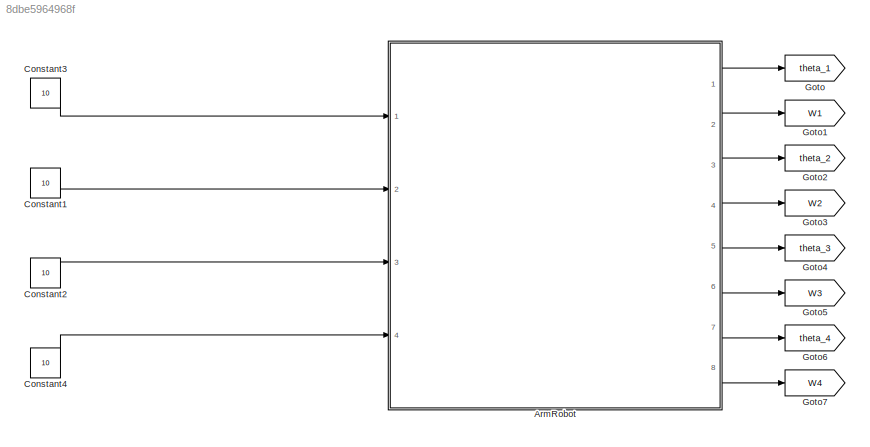
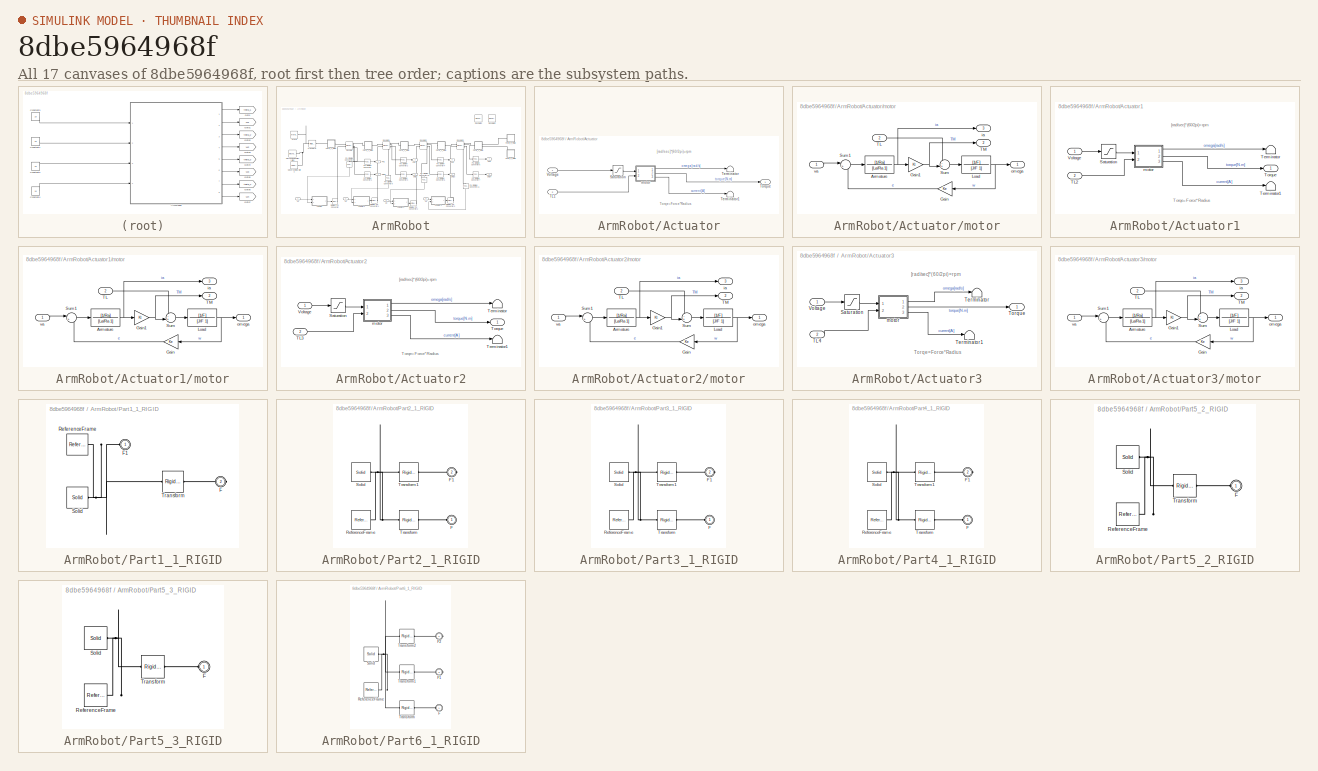
[diagram: thumbnail index - all 17 canvases of the model, root first then tree order]
MODEL slx_8dbe5964968f
KIND model
CONFIG AbsTol = auto
CONFIG FixedStep = 0.001
CONFIG MaxStep = auto
CONFIG MinStep = auto
CONFIG RelTol = 1e-3
CONFIG SampleTimeConstraint = Unconstrained
CONFIG Solver = ode5
CONFIG SolverMode = Auto
CONFIG SolverName = ode5
CONFIG StartTime = 0.0
CONFIG StopTime = 10
WORKSPACE source: external: MATLAB File  (data not in archive)
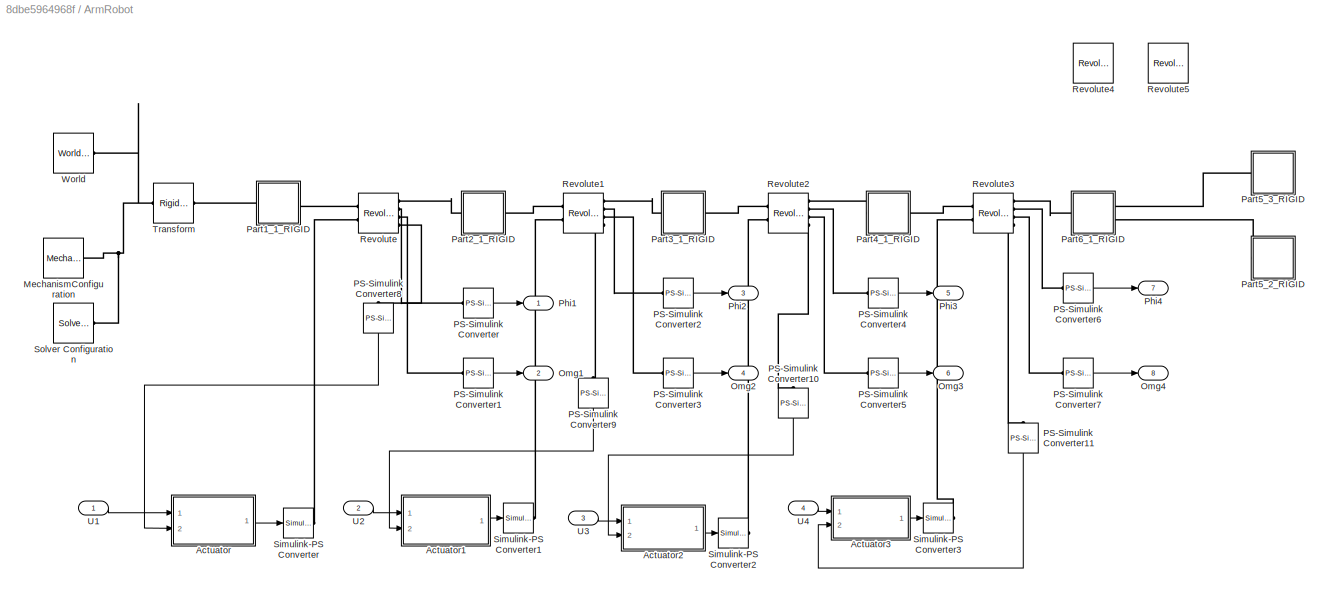
BLOCK [SubSystem] ArmRobot
  Ports = [4, 8]
  RequestExecContextInheritance = off
  Variant = off
BLOCK [SubSystem] ArmRobot/Actuator
  Ports = [2, 1]
  RequestExecContextInheritance = off
  Variant = off
BLOCK [Saturate] ArmRobot/Actuator/Saturation
  InputPortMap = u0
  LowerLimit = -12
  Ports = [1, 1]
  UpperLimit = 12
BLOCK [Inport] ArmRobot/Actuator/TL1 
  IconDisplay = Port number
  Port = 2
BLOCK [Terminator] ArmRobot/Actuator/Terminator
BLOCK [Terminator] ArmRobot/Actuator/Terminator1
BLOCK [Outport] ArmRobot/Actuator/Torque
  IconDisplay = Port number
BLOCK [Inport] ArmRobot/Actuator/Voltage
  IconDisplay = Port number
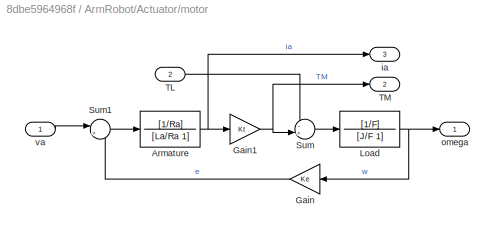
BLOCK [SubSystem] ArmRobot/Actuator/motor
  Ports = [2, 3]
  RequestExecContextInheritance = off
  Variant = off
BLOCK [TransferFcn] ArmRobot/Actuator/motor/Armature
  Denominator = [La/Ra 1]
  Numerator = [1/Ra]
BLOCK [Gain] ArmRobot/Actuator/motor/Gain
  Gain = Ke
  OutDataTypeStr = Inherit: Inherit via internal rule
  ParamDataTypeStr = Inherit: Inherit via internal rule
  SaturateOnIntegerOverflow = off
BLOCK [Gain] ArmRobot/Actuator/motor/Gain1
  Gain = Kt
  OutDataTypeStr = Inherit: Inherit via internal rule
  ParamDataTypeStr = Inherit: Inherit via internal rule
  SaturateOnIntegerOverflow = off
BLOCK [TransferFcn] ArmRobot/Actuator/motor/Load
  Denominator = [J/F 1]
  Numerator = [1/F]
BLOCK [Sum] ArmRobot/Actuator/motor/Sum
  IconShape = round
  InputSameDT = off
  Inputs = -+|
  OutDataTypeStr = Inherit: Inherit via internal rule
  Ports = [2, 1]
  SaturateOnIntegerOverflow = off
BLOCK [Sum] ArmRobot/Actuator/motor/Sum1
  IconShape = round
  InputSameDT = off
  Inputs = |+-
  OutDataTypeStr = Inherit: Inherit via internal rule
  Ports = [2, 1]
  SaturateOnIntegerOverflow = off
BLOCK [Inport] ArmRobot/Actuator/motor/TL
  IconDisplay = Port number
  Port = 2
BLOCK [Outport] ArmRobot/Actuator/motor/TM
  IconDisplay = Port number
  Port = 2
BLOCK [Outport] ArmRobot/Actuator/motor/ia
  IconDisplay = Port number
  Port = 3
BLOCK [Outport] ArmRobot/Actuator/motor/omega
  IconDisplay = Port number
BLOCK [Inport] ArmRobot/Actuator/motor/va
  IconDisplay = Port number
BLOCK [SubSystem] ArmRobot/Actuator1
  Ports = [2, 1]
  RequestExecContextInheritance = off
  Variant = off
BLOCK [Saturate] ArmRobot/Actuator1/Saturation
  InputPortMap = u0
  LowerLimit = -12
  Ports = [1, 1]
  UpperLimit = 12
BLOCK [Inport] ArmRobot/Actuator1/TL2
  IconDisplay = Port number
  Port = 2
BLOCK [Terminator] ArmRobot/Actuator1/Terminator
BLOCK [Terminator] ArmRobot/Actuator1/Terminator1
BLOCK [Outport] ArmRobot/Actuator1/Torque
  IconDisplay = Port number
BLOCK [Inport] ArmRobot/Actuator1/Voltage
  IconDisplay = Port number
BLOCK [SubSystem] ArmRobot/Actuator1/motor
  Ports = [2, 3]
  RequestExecContextInheritance = off
  Variant = off
BLOCK [TransferFcn] ArmRobot/Actuator1/motor/Armature
  Denominator = [La/Ra 1]
  Numerator = [1/Ra]
BLOCK [Gain] ArmRobot/Actuator1/motor/Gain
  Gain = Ke
  OutDataTypeStr = Inherit: Inherit via internal rule
  ParamDataTypeStr = Inherit: Inherit via internal rule
  SaturateOnIntegerOverflow = off
BLOCK [Gain] ArmRobot/Actuator1/motor/Gain1
  Gain = Kt
  OutDataTypeStr = Inherit: Inherit via internal rule
  ParamDataTypeStr = Inherit: Inherit via internal rule
  SaturateOnIntegerOverflow = off
BLOCK [TransferFcn] ArmRobot/Actuator1/motor/Load
  Denominator = [J/F 1]
  Numerator = [1/F]
BLOCK [Sum] ArmRobot/Actuator1/motor/Sum
  IconShape = round
  InputSameDT = off
  Inputs = -+|
  OutDataTypeStr = Inherit: Inherit via internal rule
  Ports = [2, 1]
  SaturateOnIntegerOverflow = off
BLOCK [Sum] ArmRobot/Actuator1/motor/Sum1
  IconShape = round
  InputSameDT = off
  Inputs = |+-
  OutDataTypeStr = Inherit: Inherit via internal rule
  Ports = [2, 1]
  SaturateOnIntegerOverflow = off
BLOCK [Inport] ArmRobot/Actuator1/motor/TL
  IconDisplay = Port number
  Port = 2
BLOCK [Outport] ArmRobot/Actuator1/motor/TM
  IconDisplay = Port number
  Port = 2
BLOCK [Outport] ArmRobot/Actuator1/motor/ia
  IconDisplay = Port number
  Port = 3
BLOCK [Outport] ArmRobot/Actuator1/motor/omega
  IconDisplay = Port number
BLOCK [Inport] ArmRobot/Actuator1/motor/va
  IconDisplay = Port number
BLOCK [SubSystem] ArmRobot/Actuator2
  Ports = [2, 1]
  RequestExecContextInheritance = off
  Variant = off
BLOCK [Saturate] ArmRobot/Actuator2/Saturation
  InputPortMap = u0
  LowerLimit = -12
  Ports = [1, 1]
  UpperLimit = 12
BLOCK [Inport] ArmRobot/Actuator2/TL3
  IconDisplay = Port number
  Port = 2
BLOCK [Terminator] ArmRobot/Actuator2/Terminator
BLOCK [Terminator] ArmRobot/Actuator2/Terminator1
BLOCK [Outport] ArmRobot/Actuator2/Torque
  IconDisplay = Port number
BLOCK [Inport] ArmRobot/Actuator2/Voltage
  IconDisplay = Port number
BLOCK [SubSystem] ArmRobot/Actuator2/motor
  Ports = [2, 3]
  RequestExecContextInheritance = off
  Variant = off
BLOCK [TransferFcn] ArmRobot/Actuator2/motor/Armature
  Denominator = [La/Ra 1]
  Numerator = [1/Ra]
BLOCK [Gain] ArmRobot/Actuator2/motor/Gain
  Gain = Ke
  OutDataTypeStr = Inherit: Inherit via internal rule
  ParamDataTypeStr = Inherit: Inherit via internal rule
  SaturateOnIntegerOverflow = off
BLOCK [Gain] ArmRobot/Actuator2/motor/Gain1
  Gain = Kt
  OutDataTypeStr = Inherit: Inherit via internal rule
  ParamDataTypeStr = Inherit: Inherit via internal rule
  SaturateOnIntegerOverflow = off
BLOCK [TransferFcn] ArmRobot/Actuator2/motor/Load
  Denominator = [J/F 1]
  Numerator = [1/F]
BLOCK [Sum] ArmRobot/Actuator2/motor/Sum
  IconShape = round
  InputSameDT = off
  Inputs = -+|
  OutDataTypeStr = Inherit: Inherit via internal rule
  Ports = [2, 1]
  SaturateOnIntegerOverflow = off
BLOCK [Sum] ArmRobot/Actuator2/motor/Sum1
  IconShape = round
  InputSameDT = off
  Inputs = |+-
  OutDataTypeStr = Inherit: Inherit via internal rule
  Ports = [2, 1]
  SaturateOnIntegerOverflow = off
BLOCK [Inport] ArmRobot/Actuator2/motor/TL
  IconDisplay = Port number
  Port = 2
BLOCK [Outport] ArmRobot/Actuator2/motor/TM
  IconDisplay = Port number
  Port = 2
BLOCK [Outport] ArmRobot/Actuator2/motor/ia
  IconDisplay = Port number
  Port = 3
BLOCK [Outport] ArmRobot/Actuator2/motor/omega
  IconDisplay = Port number
BLOCK [Inport] ArmRobot/Actuator2/motor/va
  IconDisplay = Port number
BLOCK [SubSystem] ArmRobot/Actuator3
  Ports = [2, 1]
  RequestExecContextInheritance = off
  Variant = off
BLOCK [Saturate] ArmRobot/Actuator3/Saturation
  InputPortMap = u0
  LowerLimit = -12
  Ports = [1, 1]
  UpperLimit = 12
BLOCK [Inport] ArmRobot/Actuator3/TL4
  IconDisplay = Port number
  Port = 2
BLOCK [Terminator] ArmRobot/Actuator3/Terminator
BLOCK [Terminator] ArmRobot/Actuator3/Terminator1
BLOCK [Outport] ArmRobot/Actuator3/Torque
  IconDisplay = Port number
BLOCK [Inport] ArmRobot/Actuator3/Voltage
  IconDisplay = Port number
BLOCK [SubSystem] ArmRobot/Actuator3/motor
  Ports = [2, 3]
  RequestExecContextInheritance = off
  Variant = off
BLOCK [TransferFcn] ArmRobot/Actuator3/motor/Armature
  Denominator = [La/Ra 1]
  Numerator = [1/Ra]
BLOCK [Gain] ArmRobot/Actuator3/motor/Gain
  Gain = Ke
  OutDataTypeStr = Inherit: Inherit via internal rule
  ParamDataTypeStr = Inherit: Inherit via internal rule
  SaturateOnIntegerOverflow = off
BLOCK [Gain] ArmRobot/Actuator3/motor/Gain1
  Gain = Kt
  OutDataTypeStr = Inherit: Inherit via internal rule
  ParamDataTypeStr = Inherit: Inherit via internal rule
  SaturateOnIntegerOverflow = off
BLOCK [TransferFcn] ArmRobot/Actuator3/motor/Load
  Denominator = [J/F 1]
  Numerator = [1/F]
BLOCK [Sum] ArmRobot/Actuator3/motor/Sum
  IconShape = round
  InputSameDT = off
  Inputs = -+|
  OutDataTypeStr = Inherit: Inherit via internal rule
  Ports = [2, 1]
  SaturateOnIntegerOverflow = off
BLOCK [Sum] ArmRobot/Actuator3/motor/Sum1
  IconShape = round
  InputSameDT = off
  Inputs = |+-
  OutDataTypeStr = Inherit: Inherit via internal rule
  Ports = [2, 1]
  SaturateOnIntegerOverflow = off
BLOCK [Inport] ArmRobot/Actuator3/motor/TL
  IconDisplay = Port number
  Port = 2
BLOCK [Outport] ArmRobot/Actuator3/motor/TM
  IconDisplay = Port number
  Port = 2
BLOCK [Outport] ArmRobot/Actuator3/motor/ia
  IconDisplay = Port number
  Port = 3
BLOCK [Outport] ArmRobot/Actuator3/motor/omega
  IconDisplay = Port number
BLOCK [Inport] ArmRobot/Actuator3/motor/va
  IconDisplay = Port number
BLOCK [Reference] ArmRobot/MechanismConfiguration  REF=sm_lib/Utilities/Mechanism
Configuration
  Ports = [0, 0, 0, 0, 0, 0, 1]
  SourceBlock = sm_lib/Utilities/Mechanism\nConfiguration
  SourceType = Mechanism\nConfiguration
BLOCK [Outport] ArmRobot/Omg1
  IconDisplay = Port number
  Port = 2
BLOCK [Outport] ArmRobot/Omg2
  IconDisplay = Port number
  Port = 4
BLOCK [Outport] ArmRobot/Omg3
  IconDisplay = Port number
  Port = 6
BLOCK [Outport] ArmRobot/Omg4
  IconDisplay = Port number
  Port = 8
BLOCK [Reference] ArmRobot/PS-Simulink Converter  REF=nesl_utility/PS-Simulink
Converter
  Ports = [0, 1, 0, 0, 0, 1]
  SourceBlock = nesl_utility/PS-Simulink\nConverter
  SourceType = PS-Simulink\nConverter
BLOCK [Reference] ArmRobot/PS-Simulink Converter1  REF=nesl_utility/PS-Simulink
Converter
  Ports = [0, 1, 0, 0, 0, 1]
  SourceBlock = nesl_utility/PS-Simulink\nConverter
  SourceType = PS-Simulink\nConverter
BLOCK [Reference] ArmRobot/PS-Simulink Converter10  REF=nesl_utility/PS-Simulink
Converter
  Ports = [0, 1, 0, 0, 0, 1]
  SourceBlock = nesl_utility/PS-Simulink\nConverter
  SourceType = PS-Simulink\nConverter
BLOCK [Reference] ArmRobot/PS-Simulink Converter11  REF=nesl_utility/PS-Simulink
Converter
  Ports = [0, 1, 0, 0, 0, 1]
  SourceBlock = nesl_utility/PS-Simulink\nConverter
  SourceType = PS-Simulink\nConverter
BLOCK [Reference] ArmRobot/PS-Simulink Converter2  REF=nesl_utility/PS-Simulink
Converter
  Ports = [0, 1, 0, 0, 0, 1]
  SourceBlock = nesl_utility/PS-Simulink\nConverter
  SourceType = PS-Simulink\nConverter
BLOCK [Reference] ArmRobot/PS-Simulink Converter3  REF=nesl_utility/PS-Simulink
Converter
  Ports = [0, 1, 0, 0, 0, 1]
  SourceBlock = nesl_utility/PS-Simulink\nConverter
  SourceType = PS-Simulink\nConverter
BLOCK [Reference] ArmRobot/PS-Simulink Converter4  REF=nesl_utility/PS-Simulink
Converter
  Ports = [0, 1, 0, 0, 0, 1]
  SourceBlock = nesl_utility/PS-Simulink\nConverter
  SourceType = PS-Simulink\nConverter
BLOCK [Reference] ArmRobot/PS-Simulink Converter5  REF=nesl_utility/PS-Simulink
Converter
  Ports = [0, 1, 0, 0, 0, 1]
  SourceBlock = nesl_utility/PS-Simulink\nConverter
  SourceType = PS-Simulink\nConverter
BLOCK [Reference] ArmRobot/PS-Simulink Converter6  REF=nesl_utility/PS-Simulink
Converter
  Ports = [0, 1, 0, 0, 0, 1]
  SourceBlock = nesl_utility/PS-Simulink\nConverter
  SourceType = PS-Simulink\nConverter
BLOCK [Reference] ArmRobot/PS-Simulink Converter7  REF=nesl_utility/PS-Simulink
Converter
  Ports = [0, 1, 0, 0, 0, 1]
  SourceBlock = nesl_utility/PS-Simulink\nConverter
  SourceType = PS-Simulink\nConverter
BLOCK [Reference] ArmRobot/PS-Simulink Converter8  REF=nesl_utility/PS-Simulink
Converter
  Ports = [0, 1, 0, 0, 0, 1]
  SourceBlock = nesl_utility/PS-Simulink\nConverter
  SourceType = PS-Simulink\nConverter
BLOCK [Reference] ArmRobot/PS-Simulink Converter9  REF=nesl_utility/PS-Simulink
Converter
  Ports = [0, 1, 0, 0, 0, 1]
  SourceBlock = nesl_utility/PS-Simulink\nConverter
  SourceType = PS-Simulink\nConverter
BLOCK [SubSystem] ArmRobot/Part1_1_RIGID
  Ports = [0, 0, 0, 0, 0, 1, 1]
  RequestExecContextInheritance = off
  Variant = off
BLOCK [PMIOPort] ArmRobot/Part1_1_RIGID/F
  Port = 2
  Side = Right
BLOCK [PMIOPort] ArmRobot/Part1_1_RIGID/F1
  Port = 1
  Side = Left
BLOCK [Reference] ArmRobot/Part1_1_RIGID/ReferenceFrame  REF=sm_lib/Frames and
Transforms/Reference
Frame
  Ports = [0, 0, 0, 0, 0, 0, 1]
  SourceBlock = sm_lib/Frames and\nTransforms/Reference\nFrame
  SourceType = Reference\nFrame
BLOCK [Reference] ArmRobot/Part1_1_RIGID/Solid  REF=sm_lib/Body Elements/Solid
  Ports = [0, 0, 0, 0, 0, 0, 1]
  SourceBlock = sm_lib/Body Elements/Solid
  SourceType = Solid
BLOCK [Reference] ArmRobot/Part1_1_RIGID/Transform  REF=sm_lib/Frames and
Transforms/Rigid
Transform
  Ports = [0, 0, 0, 0, 0, 1, 1]
  SourceBlock = sm_lib/Frames and\nTransforms/Rigid\nTransform
  SourceType = Rigid\nTransform
BLOCK [SubSystem] ArmRobot/Part2_1_RIGID
  Ports = [0, 0, 0, 0, 0, 1, 1]
  RequestExecContextInheritance = off
  Variant = off
BLOCK [PMIOPort] ArmRobot/Part2_1_RIGID/F
  Port = 1
  Side = Left
BLOCK [PMIOPort] ArmRobot/Part2_1_RIGID/F1
  Port = 2
  Side = Right
BLOCK [Reference] ArmRobot/Part2_1_RIGID/ReferenceFrame  REF=sm_lib/Frames and
Transforms/Reference
Frame
  Ports = [0, 0, 0, 0, 0, 0, 1]
  SourceBlock = sm_lib/Frames and\nTransforms/Reference\nFrame
  SourceType = Reference\nFrame
BLOCK [Reference] ArmRobot/Part2_1_RIGID/Solid  REF=sm_lib/Body Elements/Solid
  Ports = [0, 0, 0, 0, 0, 0, 1]
  SourceBlock = sm_lib/Body Elements/Solid
  SourceType = Solid
BLOCK [Reference] ArmRobot/Part2_1_RIGID/Transform  REF=sm_lib/Frames and
Transforms/Rigid
Transform
  Ports = [0, 0, 0, 0, 0, 1, 1]
  SourceBlock = sm_lib/Frames and\nTransforms/Rigid\nTransform
  SourceType = Rigid\nTransform
BLOCK [Reference] ArmRobot/Part2_1_RIGID/Transform1  REF=sm_lib/Frames and
Transforms/Rigid
Transform
  Ports = [0, 0, 0, 0, 0, 1, 1]
  SourceBlock = sm_lib/Frames and\nTransforms/Rigid\nTransform
  SourceType = Rigid\nTransform
BLOCK [SubSystem] ArmRobot/Part3_1_RIGID
  Ports = [0, 0, 0, 0, 0, 1, 1]
  RequestExecContextInheritance = off
  Variant = off
BLOCK [PMIOPort] ArmRobot/Part3_1_RIGID/F
  Port = 1
  Side = Left
BLOCK [PMIOPort] ArmRobot/Part3_1_RIGID/F1
  Port = 2
  Side = Right
BLOCK [Reference] ArmRobot/Part3_1_RIGID/ReferenceFrame  REF=sm_lib/Frames and
Transforms/Reference
Frame
  Ports = [0, 0, 0, 0, 0, 0, 1]
  SourceBlock = sm_lib/Frames and\nTransforms/Reference\nFrame
  SourceType = Reference\nFrame
BLOCK [Reference] ArmRobot/Part3_1_RIGID/Solid  REF=sm_lib/Body Elements/Solid
  Ports = [0, 0, 0, 0, 0, 0, 1]
  SourceBlock = sm_lib/Body Elements/Solid
  SourceType = Solid
BLOCK [Reference] ArmRobot/Part3_1_RIGID/Transform  REF=sm_lib/Frames and
Transforms/Rigid
Transform
  Ports = [0, 0, 0, 0, 0, 1, 1]
  SourceBlock = sm_lib/Frames and\nTransforms/Rigid\nTransform
  SourceType = Rigid\nTransform
BLOCK [Reference] ArmRobot/Part3_1_RIGID/Transform1  REF=sm_lib/Frames and
Transforms/Rigid
Transform
  Ports = [0, 0, 0, 0, 0, 1, 1]
  SourceBlock = sm_lib/Frames and\nTransforms/Rigid\nTransform
  SourceType = Rigid\nTransform
BLOCK [SubSystem] ArmRobot/Part4_1_RIGID
  Ports = [0, 0, 0, 0, 0, 1, 1]
  RequestExecContextInheritance = off
  Variant = off
BLOCK [PMIOPort] ArmRobot/Part4_1_RIGID/F
  Port = 1
  Side = Left
BLOCK [PMIOPort] ArmRobot/Part4_1_RIGID/F1
  Port = 2
  Side = Right
BLOCK [Reference] ArmRobot/Part4_1_RIGID/ReferenceFrame  REF=sm_lib/Frames and
Transforms/Reference
Frame
  Ports = [0, 0, 0, 0, 0, 0, 1]
  SourceBlock = sm_lib/Frames and\nTransforms/Reference\nFrame
  SourceType = Reference\nFrame
BLOCK [Reference] ArmRobot/Part4_1_RIGID/Solid  REF=sm_lib/Body Elements/Solid
  Ports = [0, 0, 0, 0, 0, 0, 1]
  SourceBlock = sm_lib/Body Elements/Solid
  SourceType = Solid
BLOCK [Reference] ArmRobot/Part4_1_RIGID/Transform  REF=sm_lib/Frames and
Transforms/Rigid
Transform
  Ports = [0, 0, 0, 0, 0, 1, 1]
  SourceBlock = sm_lib/Frames and\nTransforms/Rigid\nTransform
  SourceType = Rigid\nTransform
BLOCK [Reference] ArmRobot/Part4_1_RIGID/Transform1  REF=sm_lib/Frames and
Transforms/Rigid
Transform
  Ports = [0, 0, 0, 0, 0, 1, 1]
  SourceBlock = sm_lib/Frames and\nTransforms/Rigid\nTransform
  SourceType = Rigid\nTransform
BLOCK [SubSystem] ArmRobot/Part5_2_RIGID
  Ports = [0, 0, 0, 0, 0, 1]
  RequestExecContextInheritance = off
  Variant = off
BLOCK [PMIOPort] ArmRobot/Part5_2_RIGID/F
  Port = 1
  Side = Left
BLOCK [Reference] ArmRobot/Part5_2_RIGID/ReferenceFrame  REF=sm_lib/Frames and
Transforms/Reference
Frame
  Ports = [0, 0, 0, 0, 0, 0, 1]
  SourceBlock = sm_lib/Frames and\nTransforms/Reference\nFrame
  SourceType = Reference\nFrame
BLOCK [Reference] ArmRobot/Part5_2_RIGID/Solid  REF=sm_lib/Body Elements/Solid
  Ports = [0, 0, 0, 0, 0, 0, 1]
  SourceBlock = sm_lib/Body Elements/Solid
  SourceType = Solid
BLOCK [Reference] ArmRobot/Part5_2_RIGID/Transform  REF=sm_lib/Frames and
Transforms/Rigid
Transform
  Ports = [0, 0, 0, 0, 0, 1, 1]
  SourceBlock = sm_lib/Frames and\nTransforms/Rigid\nTransform
  SourceType = Rigid\nTransform
BLOCK [SubSystem] ArmRobot/Part5_3_RIGID
  Ports = [0, 0, 0, 0, 0, 1]
  RequestExecContextInheritance = off
  Variant = off
BLOCK [PMIOPort] ArmRobot/Part5_3_RIGID/F
  Port = 1
  Side = Left
BLOCK [Reference] ArmRobot/Part5_3_RIGID/ReferenceFrame  REF=sm_lib/Frames and
Transforms/Reference
Frame
  Ports = [0, 0, 0, 0, 0, 0, 1]
  SourceBlock = sm_lib/Frames and\nTransforms/Reference\nFrame
  SourceType = Reference\nFrame
BLOCK [Reference] ArmRobot/Part5_3_RIGID/Solid  REF=sm_lib/Body Elements/Solid
  Ports = [0, 0, 0, 0, 0, 0, 1]
  SourceBlock = sm_lib/Body Elements/Solid
  SourceType = Solid
BLOCK [Reference] ArmRobot/Part5_3_RIGID/Transform  REF=sm_lib/Frames and
Transforms/Rigid
Transform
  Ports = [0, 0, 0, 0, 0, 1, 1]
  SourceBlock = sm_lib/Frames and\nTransforms/Rigid\nTransform
  SourceType = Rigid\nTransform
BLOCK [SubSystem] ArmRobot/Part6_1_RIGID
  Ports = [0, 0, 0, 0, 0, 1, 2]
  RequestExecContextInheritance = off
  Variant = off
BLOCK [PMIOPort] ArmRobot/Part6_1_RIGID/F
  Port = 1
  Side = Left
BLOCK [PMIOPort] ArmRobot/Part6_1_RIGID/F1
  Port = 3
  Side = Right
BLOCK [PMIOPort] ArmRobot/Part6_1_RIGID/F2
  Port = 2
  Side = Right
BLOCK [Reference] ArmRobot/Part6_1_RIGID/ReferenceFrame  REF=sm_lib/Frames and
Transforms/Reference
Frame
  Ports = [0, 0, 0, 0, 0, 0, 1]
  SourceBlock = sm_lib/Frames and\nTransforms/Reference\nFrame
  SourceType = Reference\nFrame
BLOCK [Reference] ArmRobot/Part6_1_RIGID/Solid  REF=sm_lib/Body Elements/Solid
  Ports = [0, 0, 0, 0, 0, 0, 1]
  SourceBlock = sm_lib/Body Elements/Solid
  SourceType = Solid
BLOCK [Reference] ArmRobot/Part6_1_RIGID/Transform  REF=sm_lib/Frames and
Transforms/Rigid
Transform
  Ports = [0, 0, 0, 0, 0, 1, 1]
  SourceBlock = sm_lib/Frames and\nTransforms/Rigid\nTransform
  SourceType = Rigid\nTransform
BLOCK [Reference] ArmRobot/Part6_1_RIGID/Transform1  REF=sm_lib/Frames and
Transforms/Rigid
Transform
  Ports = [0, 0, 0, 0, 0, 1, 1]
  SourceBlock = sm_lib/Frames and\nTransforms/Rigid\nTransform
  SourceType = Rigid\nTransform
BLOCK [Reference] ArmRobot/Part6_1_RIGID/Transform2  REF=sm_lib/Frames and
Transforms/Rigid
Transform
  Ports = [0, 0, 0, 0, 0, 1, 1]
  SourceBlock = sm_lib/Frames and\nTransforms/Rigid\nTransform
  SourceType = Rigid\nTransform
BLOCK [Outport] ArmRobot/Phi1
  IconDisplay = Port number
BLOCK [Outport] ArmRobot/Phi2
  IconDisplay = Port number
  Port = 3
BLOCK [Outport] ArmRobot/Phi3
  IconDisplay = Port number
  Port = 5
BLOCK [Outport] ArmRobot/Phi4
  IconDisplay = Port number
  Port = 7
BLOCK [Reference] ArmRobot/Revolute  REF=sm_lib/Joints/Revolute Joint
  Ports = [0, 0, 0, 0, 0, 2, 4]
  SourceBlock = sm_lib/Joints/Revolute Joint
  SourceType = Revolute Joint
BLOCK [Reference] ArmRobot/Revolute1  REF=sm_lib/Joints/Revolute Joint
  Ports = [0, 0, 0, 0, 0, 2, 4]
  SourceBlock = sm_lib/Joints/Revolute Joint
  SourceType = Revolute Joint
BLOCK [Reference] ArmRobot/Revolute2  REF=sm_lib/Joints/Revolute Joint
  Ports = [0, 0, 0, 0, 0, 2, 4]
  SourceBlock = sm_lib/Joints/Revolute Joint
  SourceType = Revolute Joint
BLOCK [Reference] ArmRobot/Revolute3  REF=sm_lib/Joints/Revolute Joint
  Ports = [0, 0, 0, 0, 0, 2, 4]
  SourceBlock = sm_lib/Joints/Revolute Joint
  SourceType = Revolute Joint
BLOCK [Reference] ArmRobot/Revolute4  REF=sm_lib/Joints/Revolute Joint
  Commented = on
  Ports = [0, 0, 0, 0, 0, 1, 1]
  SourceBlock = sm_lib/Joints/Revolute Joint
  SourceType = Revolute Joint
BLOCK [Reference] ArmRobot/Revolute5  REF=sm_lib/Joints/Revolute Joint
  Commented = on
  Ports = [0, 0, 0, 0, 0, 1, 1]
  SourceBlock = sm_lib/Joints/Revolute Joint
  SourceType = Revolute Joint
BLOCK [Reference] ArmRobot/Simulink-PS Converter  REF=nesl_utility/Simulink-PS
Converter
  Ports = [1, 0, 0, 0, 0, 0, 1]
  SourceBlock = nesl_utility/Simulink-PS\nConverter
  SourceType = Simulink-PS\nConverter
BLOCK [Reference] ArmRobot/Simulink-PS Converter1  REF=nesl_utility/Simulink-PS
Converter
  Ports = [1, 0, 0, 0, 0, 0, 1]
  SourceBlock = nesl_utility/Simulink-PS\nConverter
  SourceType = Simulink-PS\nConverter
BLOCK [Reference] ArmRobot/Simulink-PS Converter2  REF=nesl_utility/Simulink-PS
Converter
  Ports = [1, 0, 0, 0, 0, 0, 1]
  SourceBlock = nesl_utility/Simulink-PS\nConverter
  SourceType = Simulink-PS\nConverter
BLOCK [Reference] ArmRobot/Simulink-PS Converter3  REF=nesl_utility/Simulink-PS
Converter
  Ports = [1, 0, 0, 0, 0, 0, 1]
  SourceBlock = nesl_utility/Simulink-PS\nConverter
  SourceType = Simulink-PS\nConverter
BLOCK [Reference] ArmRobot/Solver Configuration  REF=nesl_utility/Solver
Configuration
  Ports = [0, 0, 0, 0, 0, 0, 1]
  SourceBlock = nesl_utility/Solver\nConfiguration
  SourceType = Solver\nConfiguration
BLOCK [Reference] ArmRobot/Transform  REF=sm_lib/Frames and
Transforms/Rigid
Transform
  Ports = [0, 0, 0, 0, 0, 1, 1]
  SourceBlock = sm_lib/Frames and\nTransforms/Rigid\nTransform
  SourceType = Rigid\nTransform
BLOCK [Inport] ArmRobot/U1
  IconDisplay = Port number
BLOCK [Inport] ArmRobot/U2
  IconDisplay = Port number
  Port = 2
BLOCK [Inport] ArmRobot/U3
  IconDisplay = Port number
  Port = 3
BLOCK [Inport] ArmRobot/U4
  IconDisplay = Port number
  Port = 4
BLOCK [Reference] ArmRobot/World  REF=sm_lib/Frames and
Transforms/World Frame
  Ports = [0, 0, 0, 0, 0, 0, 1]
  SourceBlock = sm_lib/Frames and\nTransforms/World Frame
  SourceType = World Frame
BLOCK [Constant] Constant1
  Value = 10
BLOCK [Constant] Constant2
  Value = 10
BLOCK [Constant] Constant3
  Value = 10
BLOCK [Constant] Constant4
  Value = 10
BLOCK [Goto] Goto
  GotoTag = theta_1
BLOCK [Goto] Goto1
  GotoTag = W1
BLOCK [Goto] Goto2
  GotoTag = theta_2
BLOCK [Goto] Goto3
  GotoTag = W2
BLOCK [Goto] Goto4
  GotoTag = theta_3
BLOCK [Goto] Goto5
  GotoTag = W3
BLOCK [Goto] Goto6
  GotoTag = theta_4
BLOCK [Goto] Goto7
  GotoTag = W4
ANNOTATION ArmRobot/Actuator: Torqe=Force*Radius
ANNOTATION ArmRobot/Actuator: [rad/sec]*(60/2pi)=rpm
ANNOTATION ArmRobot/Actuator1: Torqe=Force*Radius
ANNOTATION ArmRobot/Actuator1: [rad/sec]*(60/2pi)=rpm
ANNOTATION ArmRobot/Actuator2: Torqe=Force*Radius
ANNOTATION ArmRobot/Actuator2: [rad/sec]*(60/2pi)=rpm
ANNOTATION ArmRobot/Actuator3: Torqe=Force*Radius
ANNOTATION ArmRobot/Actuator3: [rad/sec]*(60/2pi)=rpm
LINE ArmRobot/Actuator/Saturation:1 -> ArmRobot/Actuator/motor:1
LINE ArmRobot/Actuator/TL1 :1 -> ArmRobot/Actuator/motor:2
LINE ArmRobot/Actuator/Voltage:1 -> ArmRobot/Actuator/Saturation:1
NET ArmRobot/Actuator/motor/Armature:1 -> ArmRobot/Actuator/motor/Gain1:1, ArmRobot/Actuator/motor/ia:1
NET ArmRobot/Actuator/motor/Gain1:1 -> ArmRobot/Actuator/motor/Sum:2, ArmRobot/Actuator/motor/TM:1
LINE ArmRobot/Actuator/motor/Gain:1 -> ArmRobot/Actuator/motor/Sum1:2
NET ArmRobot/Actuator/motor/Load:1 -> ArmRobot/Actuator/motor/Gain:1, ArmRobot/Actuator/motor/omega:1
LINE ArmRobot/Actuator/motor/Sum1:1 -> ArmRobot/Actuator/motor/Armature:1
LINE ArmRobot/Actuator/motor/Sum:1 -> ArmRobot/Actuator/motor/Load:1
LINE ArmRobot/Actuator/motor/TL:1 -> ArmRobot/Actuator/motor/Sum:1
LINE ArmRobot/Actuator/motor/va:1 -> ArmRobot/Actuator/motor/Sum1:1
LINE ArmRobot/Actuator/motor:1 -> ArmRobot/Actuator/Terminator:1
LINE ArmRobot/Actuator/motor:2 -> ArmRobot/Actuator/Torque:1
LINE ArmRobot/Actuator/motor:3 -> ArmRobot/Actuator/Terminator1:1
LINE ArmRobot/Actuator1/Saturation:1 -> ArmRobot/Actuator1/motor:1
LINE ArmRobot/Actuator1/TL2:1 -> ArmRobot/Actuator1/motor:2
LINE ArmRobot/Actuator1/Voltage:1 -> ArmRobot/Actuator1/Saturation:1
NET ArmRobot/Actuator1/motor/Armature:1 -> ArmRobot/Actuator1/motor/Gain1:1, ArmRobot/Actuator1/motor/ia:1
NET ArmRobot/Actuator1/motor/Gain1:1 -> ArmRobot/Actuator1/motor/Sum:2, ArmRobot/Actuator1/motor/TM:1
LINE ArmRobot/Actuator1/motor/Gain:1 -> ArmRobot/Actuator1/motor/Sum1:2
NET ArmRobot/Actuator1/motor/Load:1 -> ArmRobot/Actuator1/motor/Gain:1, ArmRobot/Actuator1/motor/omega:1
LINE ArmRobot/Actuator1/motor/Sum1:1 -> ArmRobot/Actuator1/motor/Armature:1
LINE ArmRobot/Actuator1/motor/Sum:1 -> ArmRobot/Actuator1/motor/Load:1
LINE ArmRobot/Actuator1/motor/TL:1 -> ArmRobot/Actuator1/motor/Sum:1
LINE ArmRobot/Actuator1/motor/va:1 -> ArmRobot/Actuator1/motor/Sum1:1
LINE ArmRobot/Actuator1/motor:1 -> ArmRobot/Actuator1/Terminator:1
LINE ArmRobot/Actuator1/motor:2 -> ArmRobot/Actuator1/Torque:1
LINE ArmRobot/Actuator1/motor:3 -> ArmRobot/Actuator1/Terminator1:1
LINE ArmRobot/Actuator1:1 -> ArmRobot/Simulink-PS Converter1:1
LINE ArmRobot/Actuator2/Saturation:1 -> ArmRobot/Actuator2/motor:1
LINE ArmRobot/Actuator2/TL3:1 -> ArmRobot/Actuator2/motor:2
LINE ArmRobot/Actuator2/Voltage:1 -> ArmRobot/Actuator2/Saturation:1
NET ArmRobot/Actuator2/motor/Armature:1 -> ArmRobot/Actuator2/motor/Gain1:1, ArmRobot/Actuator2/motor/ia:1
NET ArmRobot/Actuator2/motor/Gain1:1 -> ArmRobot/Actuator2/motor/Sum:2, ArmRobot/Actuator2/motor/TM:1
LINE ArmRobot/Actuator2/motor/Gain:1 -> ArmRobot/Actuator2/motor/Sum1:2
NET ArmRobot/Actuator2/motor/Load:1 -> ArmRobot/Actuator2/motor/Gain:1, ArmRobot/Actuator2/motor/omega:1
LINE ArmRobot/Actuator2/motor/Sum1:1 -> ArmRobot/Actuator2/motor/Armature:1
LINE ArmRobot/Actuator2/motor/Sum:1 -> ArmRobot/Actuator2/motor/Load:1
LINE ArmRobot/Actuator2/motor/TL:1 -> ArmRobot/Actuator2/motor/Sum:1
LINE ArmRobot/Actuator2/motor/va:1 -> ArmRobot/Actuator2/motor/Sum1:1
LINE ArmRobot/Actuator2/motor:1 -> ArmRobot/Actuator2/Terminator:1
LINE ArmRobot/Actuator2/motor:2 -> ArmRobot/Actuator2/Torque:1
LINE ArmRobot/Actuator2/motor:3 -> ArmRobot/Actuator2/Terminator1:1
LINE ArmRobot/Actuator2:1 -> ArmRobot/Simulink-PS Converter2:1
LINE ArmRobot/Actuator3/Saturation:1 -> ArmRobot/Actuator3/motor:1
LINE ArmRobot/Actuator3/TL4:1 -> ArmRobot/Actuator3/motor:2
LINE ArmRobot/Actuator3/Voltage:1 -> ArmRobot/Actuator3/Saturation:1
NET ArmRobot/Actuator3/motor/Armature:1 -> ArmRobot/Actuator3/motor/Gain1:1, ArmRobot/Actuator3/motor/ia:1
NET ArmRobot/Actuator3/motor/Gain1:1 -> ArmRobot/Actuator3/motor/Sum:2, ArmRobot/Actuator3/motor/TM:1
LINE ArmRobot/Actuator3/motor/Gain:1 -> ArmRobot/Actuator3/motor/Sum1:2
NET ArmRobot/Actuator3/motor/Load:1 -> ArmRobot/Actuator3/motor/Gain:1, ArmRobot/Actuator3/motor/omega:1
LINE ArmRobot/Actuator3/motor/Sum1:1 -> ArmRobot/Actuator3/motor/Armature:1
LINE ArmRobot/Actuator3/motor/Sum:1 -> ArmRobot/Actuator3/motor/Load:1
LINE ArmRobot/Actuator3/motor/TL:1 -> ArmRobot/Actuator3/motor/Sum:1
LINE ArmRobot/Actuator3/motor/va:1 -> ArmRobot/Actuator3/motor/Sum1:1
LINE ArmRobot/Actuator3/motor:1 -> ArmRobot/Actuator3/Terminator:1
LINE ArmRobot/Actuator3/motor:2 -> ArmRobot/Actuator3/Torque:1
LINE ArmRobot/Actuator3/motor:3 -> ArmRobot/Actuator3/Terminator1:1
LINE ArmRobot/Actuator3:1 -> ArmRobot/Simulink-PS Converter3:1
LINE ArmRobot/Actuator:1 -> ArmRobot/Simulink-PS Converter:1
LINE ArmRobot/PS-Simulink Converter10:1 -> ArmRobot/Actuator2:2
LINE ArmRobot/PS-Simulink Converter11:1 -> ArmRobot/Actuator3:2
LINE ArmRobot/PS-Simulink Converter1:1 -> ArmRobot/Omg1:1
LINE ArmRobot/PS-Simulink Converter2:1 -> ArmRobot/Phi2:1
LINE ArmRobot/PS-Simulink Converter3:1 -> ArmRobot/Omg2:1
LINE ArmRobot/PS-Simulink Converter4:1 -> ArmRobot/Phi3:1
LINE ArmRobot/PS-Simulink Converter5:1 -> ArmRobot/Omg3:1
LINE ArmRobot/PS-Simulink Converter6:1 -> ArmRobot/Phi4:1
LINE ArmRobot/PS-Simulink Converter7:1 -> ArmRobot/Omg4:1
LINE ArmRobot/PS-Simulink Converter8:1 -> ArmRobot/Actuator:2
LINE ArmRobot/PS-Simulink Converter9:1 -> ArmRobot/Actuator1:2
LINE ArmRobot/PS-Simulink Converter:1 -> ArmRobot/Phi1:1
LINE ArmRobot/U1:1 -> ArmRobot/Actuator:1
LINE ArmRobot/U2:1 -> ArmRobot/Actuator1:1
LINE ArmRobot/U3:1 -> ArmRobot/Actuator2:1
LINE ArmRobot/U4:1 -> ArmRobot/Actuator3:1
LINE ArmRobot:1 -> Goto:1
LINE ArmRobot:2 -> Goto1:1
LINE ArmRobot:3 -> Goto2:1
LINE ArmRobot:4 -> Goto3:1
LINE ArmRobot:5 -> Goto4:1
LINE ArmRobot:6 -> Goto5:1
LINE ArmRobot:7 -> Goto6:1
LINE ArmRobot:8 -> Goto7:1
LINE Constant1:1 -> ArmRobot:2
LINE Constant2:1 -> ArmRobot:3
LINE Constant3:1 -> ArmRobot:1
LINE Constant4:1 -> ArmRobot:4
PNET net1: ArmRobot/MechanismConfiguration:RConn1 -- ArmRobot/Solver Configuration:RConn1 -- ArmRobot/Transform:LConn1 -- ArmRobot/World:RConn1
PLINE ArmRobot/PS-Simulink Converter10:LConn1 -- ArmRobot/Revolute2:RConn4
PLINE ArmRobot/PS-Simulink Converter11:LConn1 -- ArmRobot/Revolute3:RConn4
PLINE ArmRobot/PS-Simulink Converter1:LConn1 -- ArmRobot/Revolute:RConn3
PLINE ArmRobot/PS-Simulink Converter2:LConn1 -- ArmRobot/Revolute1:RConn2
PLINE ArmRobot/PS-Simulink Converter3:LConn1 -- ArmRobot/Revolute1:RConn3
PLINE ArmRobot/PS-Simulink Converter4:LConn1 -- ArmRobot/Revolute2:RConn2
PLINE ArmRobot/PS-Simulink Converter5:LConn1 -- ArmRobot/Revolute2:RConn3
PLINE ArmRobot/PS-Simulink Converter6:LConn1 -- ArmRobot/Revolute3:RConn2
PLINE ArmRobot/PS-Simulink Converter7:LConn1 -- ArmRobot/Revolute3:RConn3
PLINE ArmRobot/PS-Simulink Converter8:LConn1 -- ArmRobot/Revolute:RConn4
PLINE ArmRobot/PS-Simulink Converter9:LConn1 -- ArmRobot/Revolute1:RConn4
PLINE ArmRobot/PS-Simulink Converter:LConn1 -- ArmRobot/Revolute:RConn2
PNET net2: ArmRobot/Part1_1_RIGID/F1:RConn1 -- ArmRobot/Part1_1_RIGID/ReferenceFrame:RConn1 -- ArmRobot/Part1_1_RIGID/Solid:RConn1 -- ArmRobot/Part1_1_RIGID/Transform:LConn1
PLINE ArmRobot/Part1_1_RIGID/F:RConn1 -- ArmRobot/Part1_1_RIGID/Transform:RConn1
PLINE ArmRobot/Part1_1_RIGID:LConn1 -- ArmRobot/Transform:RConn1
PLINE ArmRobot/Part1_1_RIGID:RConn1 -- ArmRobot/Revolute:LConn1
PLINE ArmRobot/Part2_1_RIGID/F1:RConn1 -- ArmRobot/Part2_1_RIGID/Transform1:RConn1
PLINE ArmRobot/Part2_1_RIGID/F:RConn1 -- ArmRobot/Part2_1_RIGID/Transform:RConn1
PNET net3: ArmRobot/Part2_1_RIGID/ReferenceFrame:RConn1 -- ArmRobot/Part2_1_RIGID/Solid:RConn1 -- ArmRobot/Part2_1_RIGID/Transform1:LConn1 -- ArmRobot/Part2_1_RIGID/Transform:LConn1
PLINE ArmRobot/Part2_1_RIGID:LConn1 -- ArmRobot/Revolute:RConn1
PLINE ArmRobot/Part2_1_RIGID:RConn1 -- ArmRobot/Revolute1:LConn1
PLINE ArmRobot/Part3_1_RIGID/F1:RConn1 -- ArmRobot/Part3_1_RIGID/Transform1:RConn1
PLINE ArmRobot/Part3_1_RIGID/F:RConn1 -- ArmRobot/Part3_1_RIGID/Transform:RConn1
PNET net4: ArmRobot/Part3_1_RIGID/ReferenceFrame:RConn1 -- ArmRobot/Part3_1_RIGID/Solid:RConn1 -- ArmRobot/Part3_1_RIGID/Transform1:LConn1 -- ArmRobot/Part3_1_RIGID/Transform:LConn1
PLINE ArmRobot/Part3_1_RIGID:LConn1 -- ArmRobot/Revolute1:RConn1
PLINE ArmRobot/Part3_1_RIGID:RConn1 -- ArmRobot/Revolute2:LConn1
PLINE ArmRobot/Part4_1_RIGID/F1:RConn1 -- ArmRobot/Part4_1_RIGID/Transform1:RConn1
PLINE ArmRobot/Part4_1_RIGID/F:RConn1 -- ArmRobot/Part4_1_RIGID/Transform:RConn1
PNET net5: ArmRobot/Part4_1_RIGID/ReferenceFrame:RConn1 -- ArmRobot/Part4_1_RIGID/Solid:RConn1 -- ArmRobot/Part4_1_RIGID/Transform1:LConn1 -- ArmRobot/Part4_1_RIGID/Transform:LConn1
PLINE ArmRobot/Part4_1_RIGID:LConn1 -- ArmRobot/Revolute2:RConn1
PLINE ArmRobot/Part4_1_RIGID:RConn1 -- ArmRobot/Revolute3:LConn1
PLINE ArmRobot/Part5_2_RIGID/F:RConn1 -- ArmRobot/Part5_2_RIGID/Transform:RConn1
PNET net6: ArmRobot/Part5_2_RIGID/ReferenceFrame:RConn1 -- ArmRobot/Part5_2_RIGID/Solid:RConn1 -- ArmRobot/Part5_2_RIGID/Transform:LConn1
PLINE ArmRobot/Part5_2_RIGID:LConn1 -- ArmRobot/Part6_1_RIGID:RConn2
PLINE ArmRobot/Part5_3_RIGID/F:RConn1 -- ArmRobot/Part5_3_RIGID/Transform:RConn1
PNET net7: ArmRobot/Part5_3_RIGID/ReferenceFrame:RConn1 -- ArmRobot/Part5_3_RIGID/Solid:RConn1 -- ArmRobot/Part5_3_RIGID/Transform:LConn1
PLINE ArmRobot/Part5_3_RIGID:LConn1 -- ArmRobot/Part6_1_RIGID:RConn1
PLINE ArmRobot/Part6_1_RIGID/F1:RConn1 -- ArmRobot/Part6_1_RIGID/Transform1:RConn1
PLINE ArmRobot/Part6_1_RIGID/F2:RConn1 -- ArmRobot/Part6_1_RIGID/Transform2:RConn1
PLINE ArmRobot/Part6_1_RIGID/F:RConn1 -- ArmRobot/Part6_1_RIGID/Transform:RConn1
PNET net8: ArmRobot/Part6_1_RIGID/ReferenceFrame:RConn1 -- ArmRobot/Part6_1_RIGID/Solid:RConn1 -- ArmRobot/Part6_1_RIGID/Transform1:LConn1 -- ArmRobot/Part6_1_RIGID/Transform2:LConn1 -- ArmRobot/Part6_1_RIGID/Transform:LConn1
PLINE ArmRobot/Part6_1_RIGID:LConn1 -- ArmRobot/Revolute3:RConn1
PLINE ArmRobot/Revolute1:LConn2 -- ArmRobot/Simulink-PS Converter1:RConn1
PLINE ArmRobot/Revolute2:LConn2 -- ArmRobot/Simulink-PS Converter2:RConn1
PLINE ArmRobot/Revolute3:LConn2 -- ArmRobot/Simulink-PS Converter3:RConn1
PLINE ArmRobot/Revolute:LConn2 -- ArmRobot/Simulink-PS Converter:RConn1
note: NET lines group one-source signal fan-out (src -> all destinations, sorted); 1:1 wires keep LINE; PNET lines group multi-terminal physical nets as a canonical sorted terminal list (undirected conserving connections); 2-terminal nets keep the pairwise PLINE form
